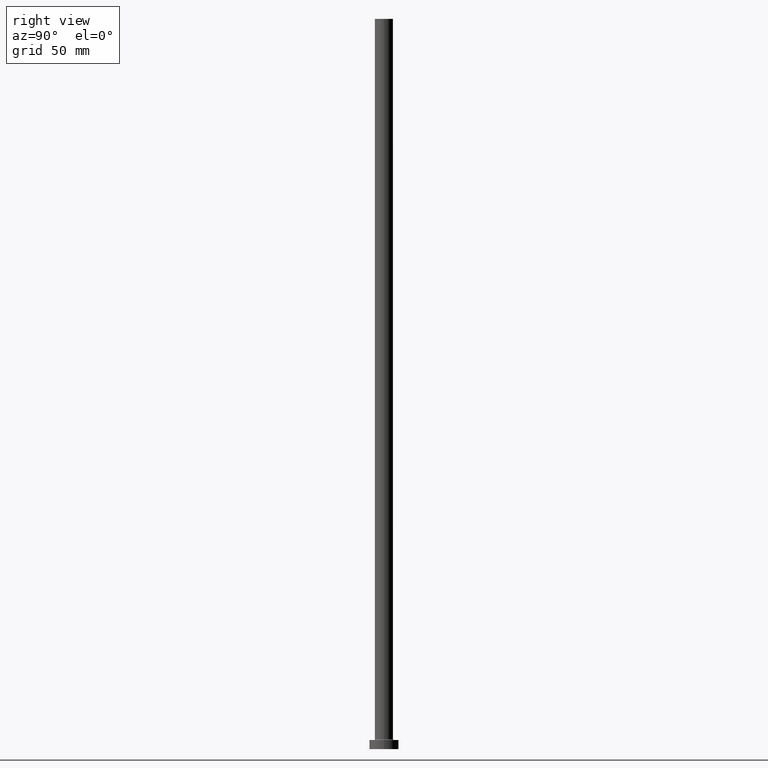
[diagram: clean part render]
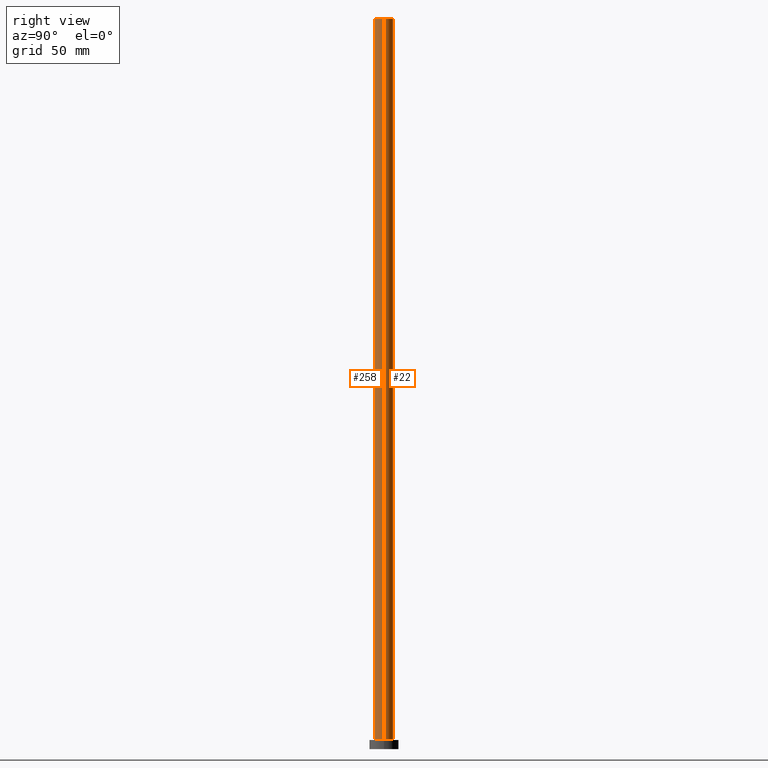
[diagram: same view with one multi-face feature highlighted, each face labeled with its STEP entity id]
A machine part, right view. The highlighted faces form ONE feature: a constant-radius fillet chain: 2 tangent blend faces with common blend radius 5 mm. The faces share edges in the B-rep.
Their STEP definitions:
[1] entity #258 (Cylinder):
#9 = ORIENTED_EDGE ( 'NONE', *, *, #136, .F. ) ;
#21 = CARTESIAN_POINT ( 'NONE',  ( 0.000000000000000000, 0.000000000000000000, 400.0000000000000000 ) ) ;
#49 = DIRECTION ( 'NONE',  ( 0.000000000000000000, 0.000000000000000000, 1.000000000000000000 ) ) ;
#76 = DIRECTION ( 'NONE',  ( 0.000000000000000000, 0.000000000000000000, 1.000000000000000000 ) ) ;
#77 = AXIS2_PLACEMENT_3D ( 'NONE', #21, #158, #132 ) ;
#79 = EDGE_CURVE ( 'NONE', #205, #365, #252, .T. ) ;
#80 = LINE ( 'NONE', #366, #101 ) ;
#85 = VERTEX_POINT ( 'NONE', #148 ) ;
#90 = ORIENTED_EDGE ( 'NONE', *, *, #110, .T. ) ;
#101 = VECTOR ( 'NONE', #330, 1000.000000000000000 ) ;
#106 = DIRECTION ( 'NONE',  ( 1.000000000000000000, 0.000000000000000000, 0.000000000000000000 ) ) ;
#110 = EDGE_CURVE ( 'NONE', #365, #272, #212, .T. ) ;
#132 = DIRECTION ( 'NONE',  ( -1.000000000000000000, 0.000000000000000000, 0.000000000000000000 ) ) ;
#136 = EDGE_CURVE ( 'NONE', #205, #85, #310, .T. ) ;
#139 = EDGE_CURVE ( 'NONE', #85, #272, #80, .T. ) ;
#142 = VECTOR ( 'NONE', #177, 1000.000000000000000 ) ;
#144 = CARTESIAN_POINT ( 'NONE',  ( -5.000000000000000000, 0.000000000000000000, 400.0000000000000000 ) ) ;
#148 = CARTESIAN_POINT ( 'NONE',  ( 5.000000000000000000, 6.123233995736765296E-16, 400.0000000000000000 ) ) ;
#158 = DIRECTION ( 'NONE',  ( -0.000000000000000000, -0.000000000000000000, -1.000000000000000000 ) ) ;
#163 = AXIS2_PLACEMENT_3D ( 'NONE', #420, #76, #106 ) ;
#164 = FACE_OUTER_BOUND ( 'NONE', #345, .T. ) ;
#166 = CARTESIAN_POINT ( 'NONE',  ( 5.000000000000000000, 6.123233995736765296E-16, 5.500000000000005329 ) ) ;
#177 = DIRECTION ( 'NONE',  ( -0.000000000000000000, -0.000000000000000000, -1.000000000000000000 ) ) ;
#191 = ORIENTED_EDGE ( 'NONE', *, *, #79, .T. ) ;
#205 = VERTEX_POINT ( 'NONE', #225 ) ;
#212 = CIRCLE ( 'NONE', #163, 5.000000000000000000 ) ;
#225 = CARTESIAN_POINT ( 'NONE',  ( -5.000000000000000000, 0.000000000000000000, 400.0000000000000000 ) ) ;
#231 = DIRECTION ( 'NONE',  ( 1.000000000000000000, 0.000000000000000000, 0.000000000000000000 ) ) ;
#241 = CARTESIAN_POINT ( 'NONE',  ( -5.000000000000000000, 0.000000000000000000, 5.500000000000005329 ) ) ;
#252 = LINE ( 'NONE', #144, #142 ) ;
#258 = ADVANCED_FACE ( 'NONE', ( #164 ), #404, .T. ) ;
#270 = CARTESIAN_POINT ( 'NONE',  ( 0.000000000000000000, 0.000000000000000000, 400.0000000000000000 ) ) ;
#272 = VERTEX_POINT ( 'NONE', #166 ) ;
#310 = CIRCLE ( 'NONE', #369, 5.000000000000000000 ) ;
#330 = DIRECTION ( 'NONE',  ( -0.000000000000000000, -0.000000000000000000, -1.000000000000000000 ) ) ;
#345 = EDGE_LOOP ( 'NONE', ( #434, #9, #191, #90 ) ) ;
#365 = VERTEX_POINT ( 'NONE', #241 ) ;
#366 = CARTESIAN_POINT ( 'NONE',  ( 5.000000000000000000, 6.123233995736765296E-16, 400.0000000000000000 ) ) ;
#369 = AXIS2_PLACEMENT_3D ( 'NONE', #270, #49, #231 ) ;
#404 = CYLINDRICAL_SURFACE ( 'NONE', #77, 5.000000000000000000 ) ;
#420 = CARTESIAN_POINT ( 'NONE',  ( 0.000000000000000000, 0.000000000000000000, 5.500000000000005329 ) ) ;
#434 = ORIENTED_EDGE ( 'NONE', *, *, #139, .F. ) ;
[2] entity #22 (Cylinder):
#1 = CIRCLE ( 'NONE', #421, 5.000000000000000000 ) ;
#15 = CARTESIAN_POINT ( 'NONE',  ( 0.000000000000000000, 0.000000000000000000, 5.500000000000005329 ) ) ;
#19 = ORIENTED_EDGE ( 'NONE', *, *, #79, .F. ) ;
#22 = ADVANCED_FACE ( 'NONE', ( #255 ), #248, .T. ) ;
#74 = DIRECTION ( 'NONE',  ( -1.000000000000000000, 0.000000000000000000, 0.000000000000000000 ) ) ;
#79 = EDGE_CURVE ( 'NONE', #205, #365, #252, .T. ) ;
#80 = LINE ( 'NONE', #366, #101 ) ;
#85 = VERTEX_POINT ( 'NONE', #148 ) ;
#89 = DIRECTION ( 'NONE',  ( 0.000000000000000000, 0.000000000000000000, 1.000000000000000000 ) ) ;
#101 = VECTOR ( 'NONE', #330, 1000.000000000000000 ) ;
#102 = EDGE_LOOP ( 'NONE', ( #412, #342, #416, #19 ) ) ;
#114 = DIRECTION ( 'NONE',  ( 1.000000000000000000, 0.000000000000000000, 0.000000000000000000 ) ) ;
#139 = EDGE_CURVE ( 'NONE', #85, #272, #80, .T. ) ;
#142 = VECTOR ( 'NONE', #177, 1000.000000000000000 ) ;
#144 = CARTESIAN_POINT ( 'NONE',  ( -5.000000000000000000, 0.000000000000000000, 400.0000000000000000 ) ) ;
#148 = CARTESIAN_POINT ( 'NONE',  ( 5.000000000000000000, 6.123233995736765296E-16, 400.0000000000000000 ) ) ;
#161 = DIRECTION ( 'NONE',  ( 1.000000000000000000, 0.000000000000000000, 0.000000000000000000 ) ) ;
#166 = CARTESIAN_POINT ( 'NONE',  ( 5.000000000000000000, 6.123233995736765296E-16, 5.500000000000005329 ) ) ;
#177 = DIRECTION ( 'NONE',  ( -0.000000000000000000, -0.000000000000000000, -1.000000000000000000 ) ) ;
#181 = EDGE_CURVE ( 'NONE', #85, #205, #1, .T. ) ;
#205 = VERTEX_POINT ( 'NONE', #225 ) ;
#211 = AXIS2_PLACEMENT_3D ( 'NONE', #323, #388, #74 ) ;
#225 = CARTESIAN_POINT ( 'NONE',  ( -5.000000000000000000, 0.000000000000000000, 400.0000000000000000 ) ) ;
#241 = CARTESIAN_POINT ( 'NONE',  ( -5.000000000000000000, 0.000000000000000000, 5.500000000000005329 ) ) ;
#246 = AXIS2_PLACEMENT_3D ( 'NONE', #15, #89, #161 ) ;
#248 = CYLINDRICAL_SURFACE ( 'NONE', #211, 5.000000000000000000 ) ;
#252 = LINE ( 'NONE', #144, #142 ) ;
#255 = FACE_OUTER_BOUND ( 'NONE', #102, .T. ) ;
#272 = VERTEX_POINT ( 'NONE', #166 ) ;
#323 = CARTESIAN_POINT ( 'NONE',  ( 0.000000000000000000, 0.000000000000000000, 400.0000000000000000 ) ) ;
#330 = DIRECTION ( 'NONE',  ( -0.000000000000000000, -0.000000000000000000, -1.000000000000000000 ) ) ;
#333 = DIRECTION ( 'NONE',  ( 0.000000000000000000, 0.000000000000000000, 1.000000000000000000 ) ) ;
#342 = ORIENTED_EDGE ( 'NONE', *, *, #139, .T. ) ;
#348 = EDGE_CURVE ( 'NONE', #272, #365, #415, .T. ) ;
#365 = VERTEX_POINT ( 'NONE', #241 ) ;
#366 = CARTESIAN_POINT ( 'NONE',  ( 5.000000000000000000, 6.123233995736765296E-16, 400.0000000000000000 ) ) ;
#388 = DIRECTION ( 'NONE',  ( -0.000000000000000000, -0.000000000000000000, -1.000000000000000000 ) ) ;
#400 = CARTESIAN_POINT ( 'NONE',  ( 0.000000000000000000, 0.000000000000000000, 400.0000000000000000 ) ) ;
#412 = ORIENTED_EDGE ( 'NONE', *, *, #181, .F. ) ;
#415 = CIRCLE ( 'NONE', #246, 5.000000000000000000 ) ;
#416 = ORIENTED_EDGE ( 'NONE', *, *, #348, .T. ) ;
#421 = AXIS2_PLACEMENT_3D ( 'NONE', #400, #333, #114 ) ;